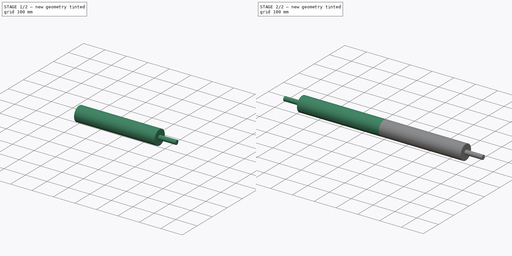
[diagram: build sequence overview — one tinted view per stage of 2, left to right]
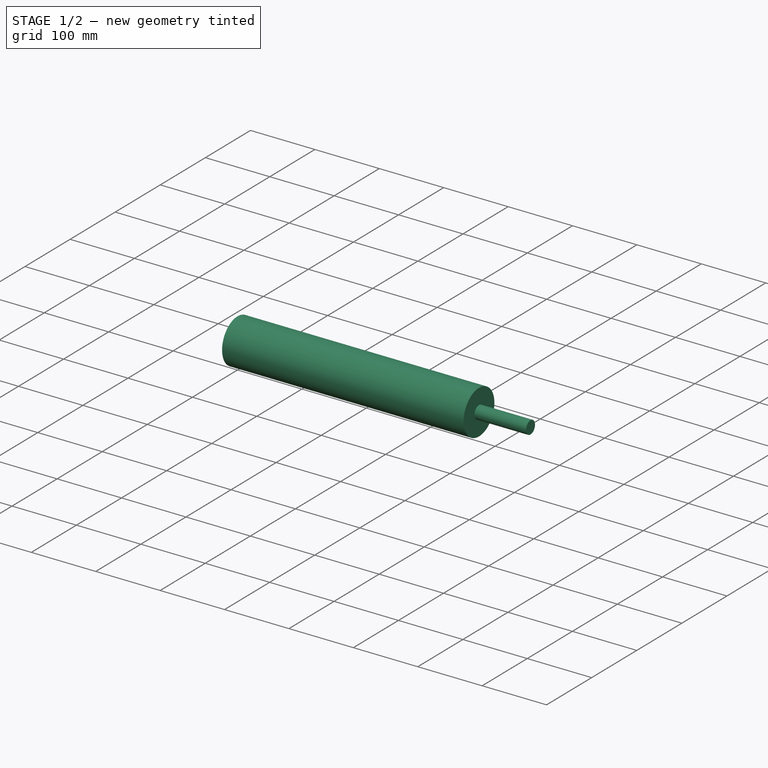
[diagram: stage 1 of 2 — iso view after this stage's code; geometry added in this stage tinted green]
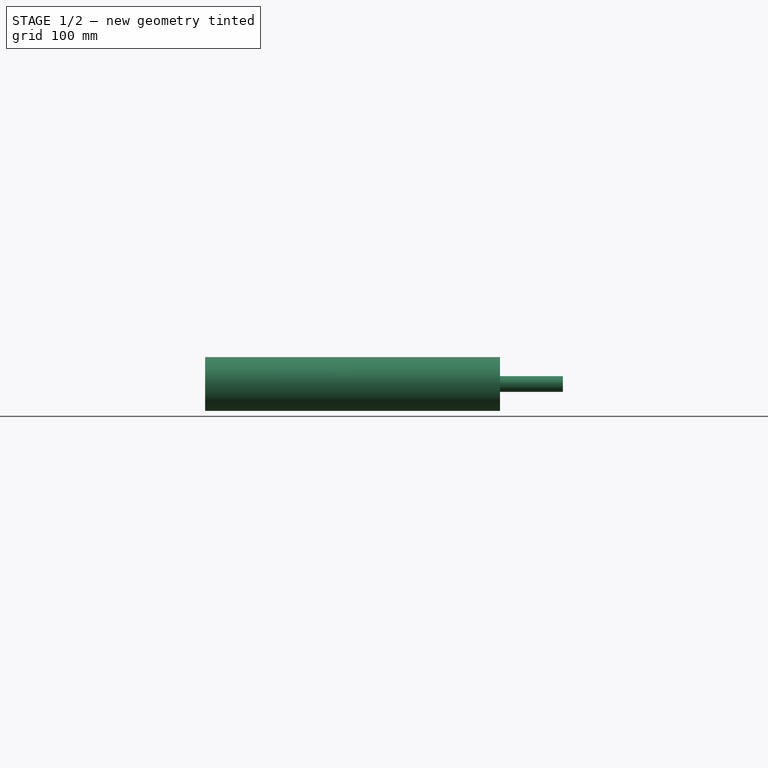
[diagram: stage 1 of 2 — front view after this stage's code; geometry added in this stage tinted green]
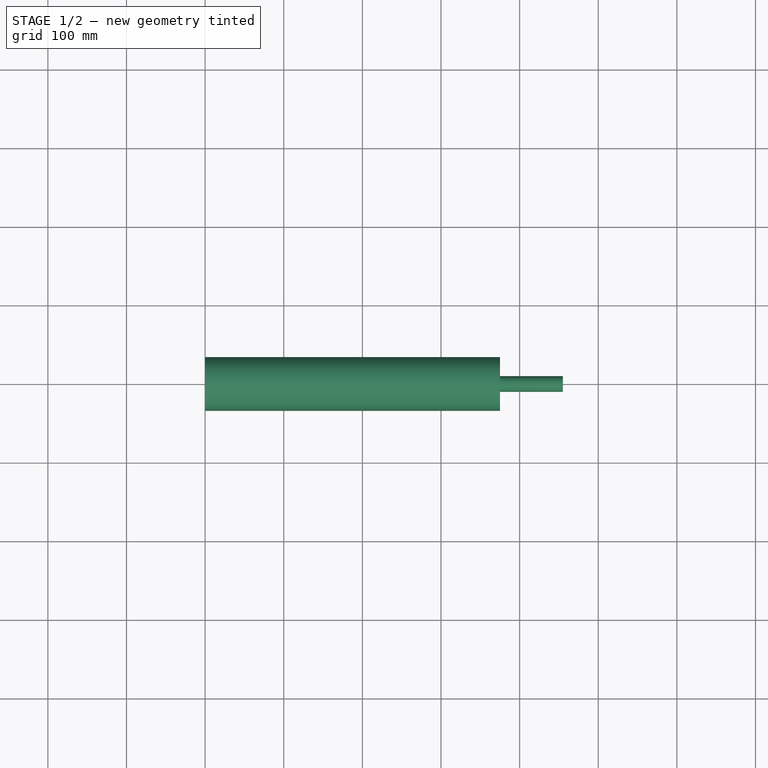
[diagram: stage 1 of 2 — top view after this stage's code; geometry added in this stage tinted green]
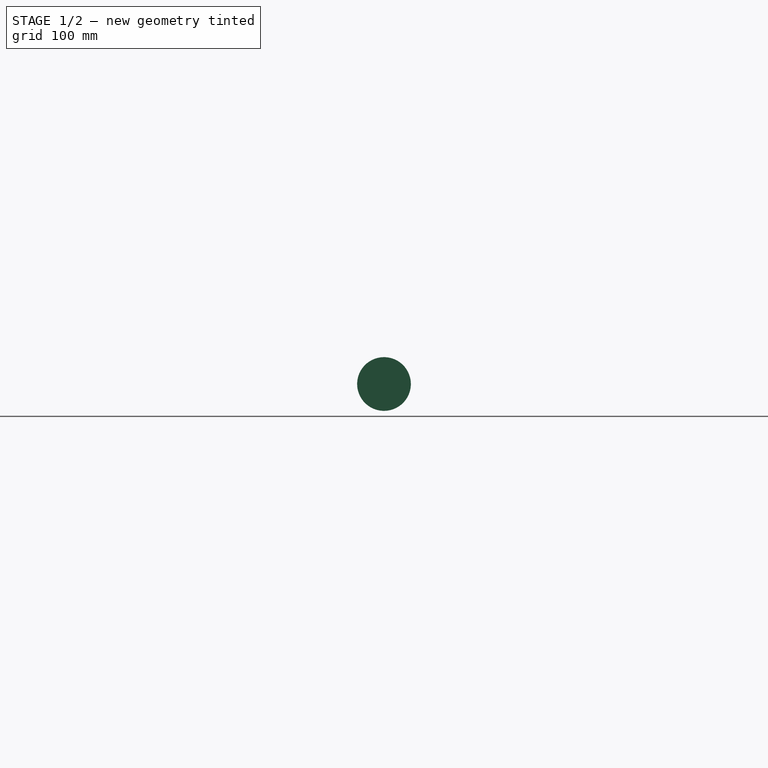
[diagram: stage 1 of 2 — right view after this stage's code; geometry added in this stage tinted green]
FCSTD DOCUMENT  (FreeCAD 0.21R32532 (Git))
Label: roll_75x710mm
License: All rights reserved
LicenseURL: http://en.wikipedia.org/wiki/All_rights_reserved
objects: PartDesign::CoordinateSystem×3, Sketcher::SketchObject×1, PartDesign::Revolution×1, PartDesign::Mirrored×1, PartDesign::Body×1
note: 8 computed .brp shape members not serialized (recipe doc carries the construction recipe); baked Part::Feature solids carry a one-line shape summary decoded from their .brp

FEATURE [PartDesign::CoordinateSystem] LCS_0
  AttacherType = Attacher::AttachEngine3D
  MapMode = 2
  Support = -> [X_Axis]
FEATURE [Sketcher::SketchObject] roll_75_sketch  label="roll_75x710_sketch"
  FullyConstrained = true
  MapMode = 5
  Placement = pos=(0,0,0) rot=(1,0,0;1.5708rad)
  Support = -> [XZ_Plane]
  sketch-geometry (8):
    g0: LineSegment StartX=0 StartY=34.15 StartZ=0 EndX=375 EndY=34.15 EndZ=0
    g1: LineSegment StartX=375 StartY=34.15 StartZ=0 EndX=375 EndY=10 EndZ=0
    g2: LineSegment StartX=375 StartY=10 StartZ=0 EndX=455 EndY=10 EndZ=0
    g3: LineSegment StartX=455 StartY=10 StartZ=0 EndX=455 EndY=0 EndZ=0
    g4: LineSegment StartX=455 StartY=0 StartZ=0 EndX=0 EndY=0 EndZ=0
    g5: LineSegment StartX=0 StartY=0 StartZ=0 EndX=0 EndY=34.15 EndZ=0
    g6: GeomPoint X=-375 Y=34.15 Z=0
    g7: GeomPoint X=-455 Y=0 Z=0
  constraints (20):
    c: PointOnObject(g0,g-2)
    c: Horizontal(g0)
    c: Coincident(g0,g1)
    c: Vertical(g1)
    c: Coincident(g1,g2)
    c: Horizontal(g2)
    c: Coincident(g2,g3)
    c: PointOnObject(g3,g-1)
    c: Vertical(g3)
    c: Coincident(g3,g4)
    c: Coincident(g4,g-1)
    c: Coincident(g4,g5)
    c: Coincident(g5,g0)
    c: Distance(g4) = 455
    c: Distance(g0) = 375
    c: DistanceY(g0) = 34.15  'r'
    c: DistanceY(g2) = 10
    c: Symmetric(g7,g3,g4)
    c: Symmetric(g6,g0,g0)
    c: DistanceX(g6,g0) = 750  'width'
FEATURE [PartDesign::Revolution] Revolution
  Angle = 360
  Axis = (1,0,0)
  Base = (0,0,0)
  Placement = pos=(0,0,0) rot=(1,0,0;1.5708rad)
  Profile = -> roll_75_sketch
  ReferenceAxis = -> roll_75_sketch [H_Axis]
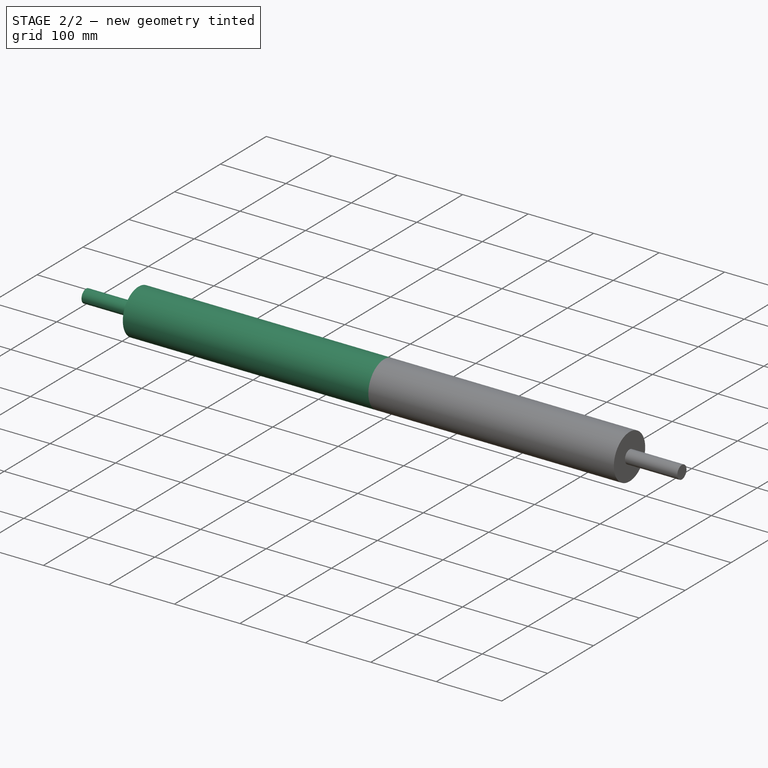
[diagram: stage 2 of 2 — iso view after this stage's code; geometry added in this stage tinted green]
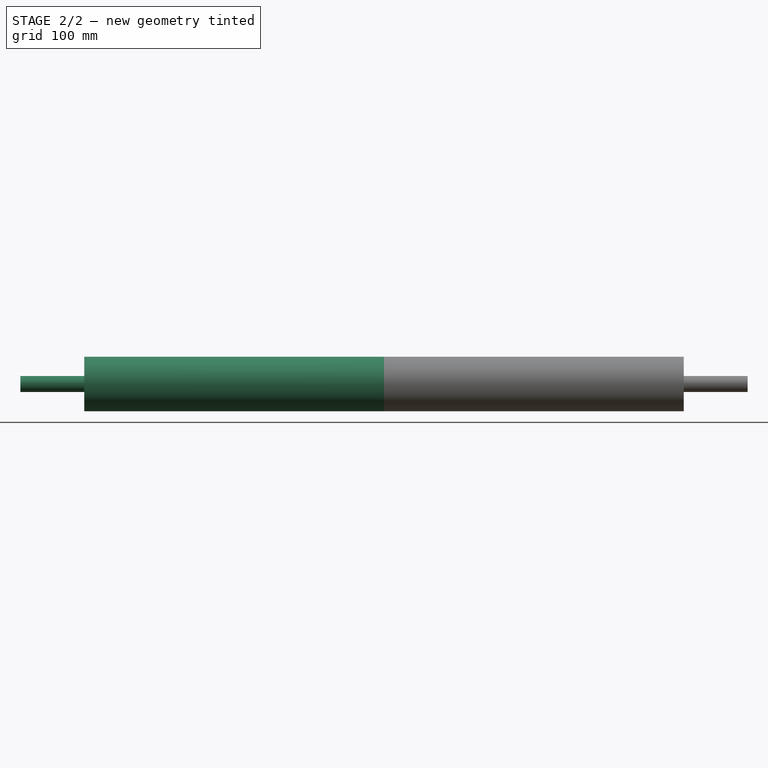
[diagram: stage 2 of 2 — front view after this stage's code; geometry added in this stage tinted green]
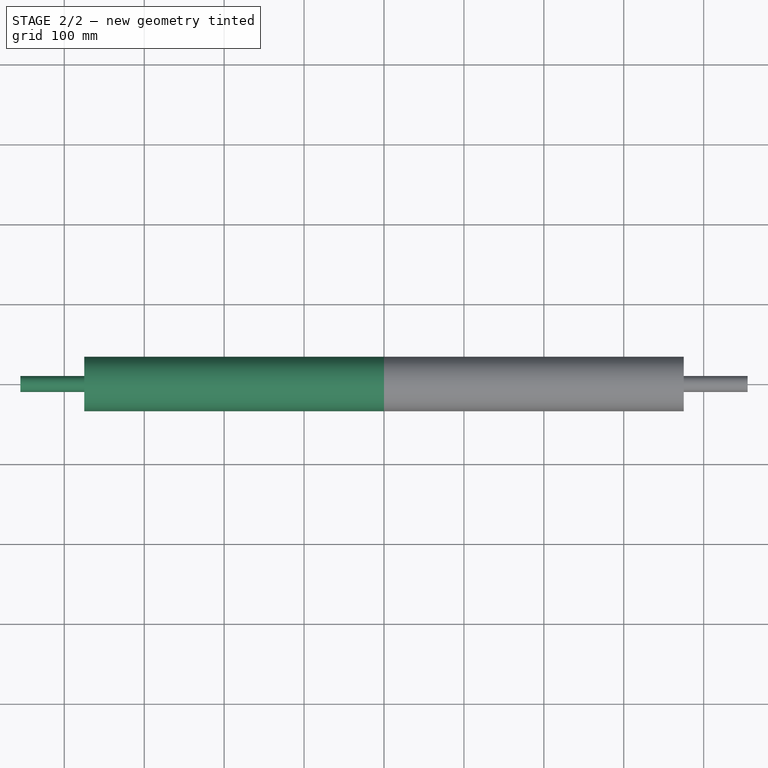
[diagram: stage 2 of 2 — top view after this stage's code; geometry added in this stage tinted green]
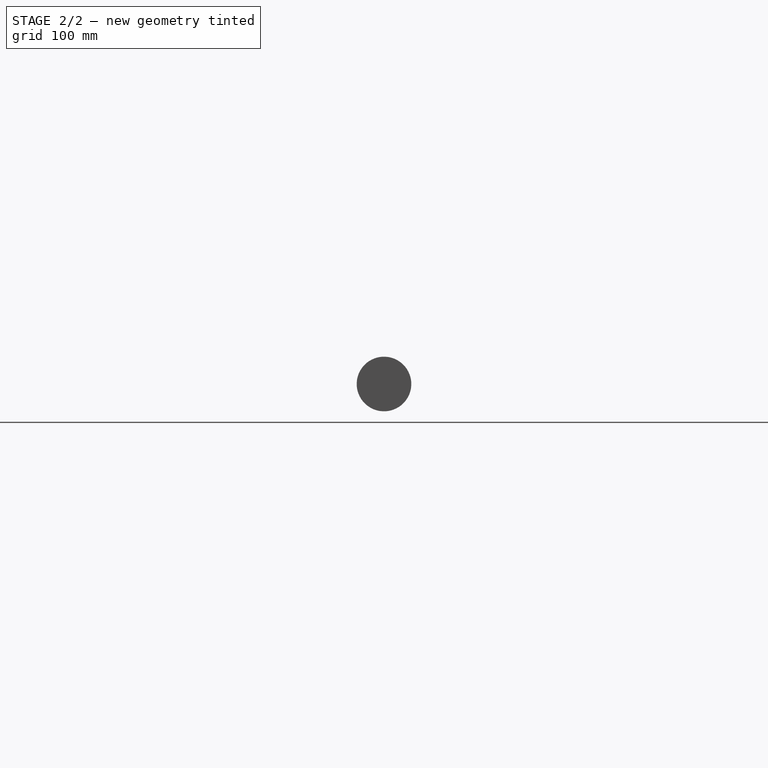
[diagram: stage 2 of 2 — right view after this stage's code; geometry added in this stage tinted green]
FEATURE [PartDesign::Mirrored] Mirrored
  BaseFeature = -> Revolution
  MirrorPlane = -> roll_75_sketch [V_Axis]
  Originals = -> [Revolution]
  Placement = pos=(0,0,0) rot=(1,0,0;1.5708rad)
FEATURE [PartDesign::CoordinateSystem] Local_CS  label="right"
  AttacherType = Attacher::AttachEngine3D
  AttachmentOffset = pos=(0,0,375) rot=(0,0,1;0rad)
  MapMode = 5
  Placement = pos=(375,-8.33e-14,8.33e-14) rot=(0.57735,0.57735,0.57735;2.0944rad)
  Support = -> [YZ_Plane]
  expr: .AttachmentOffset.Base.z = <<roll_75x710_sketch>>.Constraints.width / 2
FEATURE [PartDesign::CoordinateSystem] Local_CS001  label="left"
  AttacherType = Attacher::AttachEngine3D
  AttachmentOffset = pos=(0,0,375) rot=(0,0,1;0rad)
  MapMode = 5
  Placement = pos=(-375,8.33e-14,-8.33e-14) rot=(-0.57735,0.57735,0.57735;4.18879rad)
  Support = -> [YZ_Plane]
  expr: .AttachmentOffset.Base.z = <<roll_75x710_sketch>>.Constraints.width / 2
FEATURE [PartDesign::Body] roll_75  label="roll_75x710"
  Group = -> [LCS_0,roll_75_sketch,Revolution,Mirrored,Local_CS,Local_CS001]
  Origin = -> Origin
  Tip = -> Mirrored
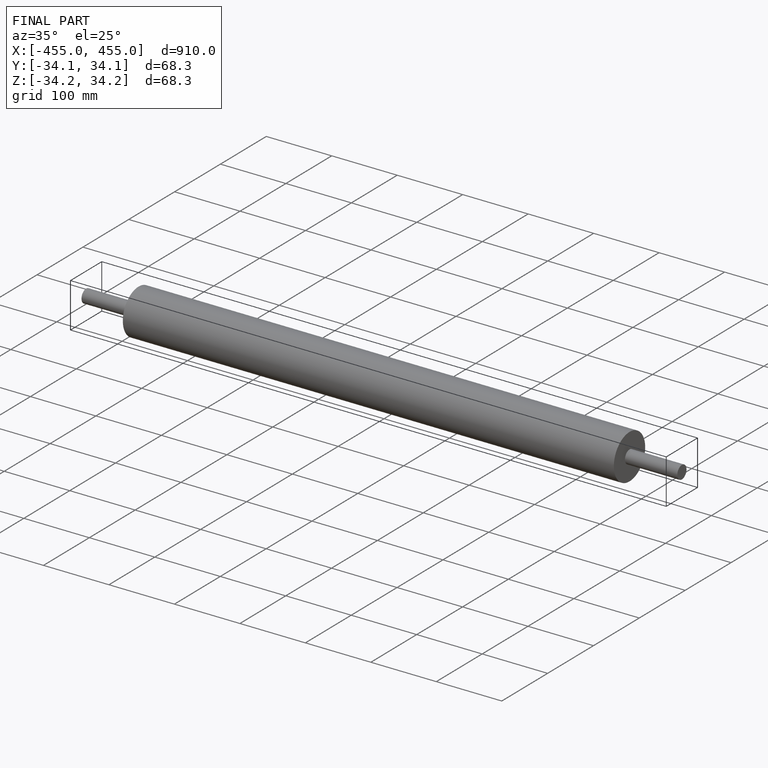
[diagram: finished part — iso view with bounding-box wireframe]
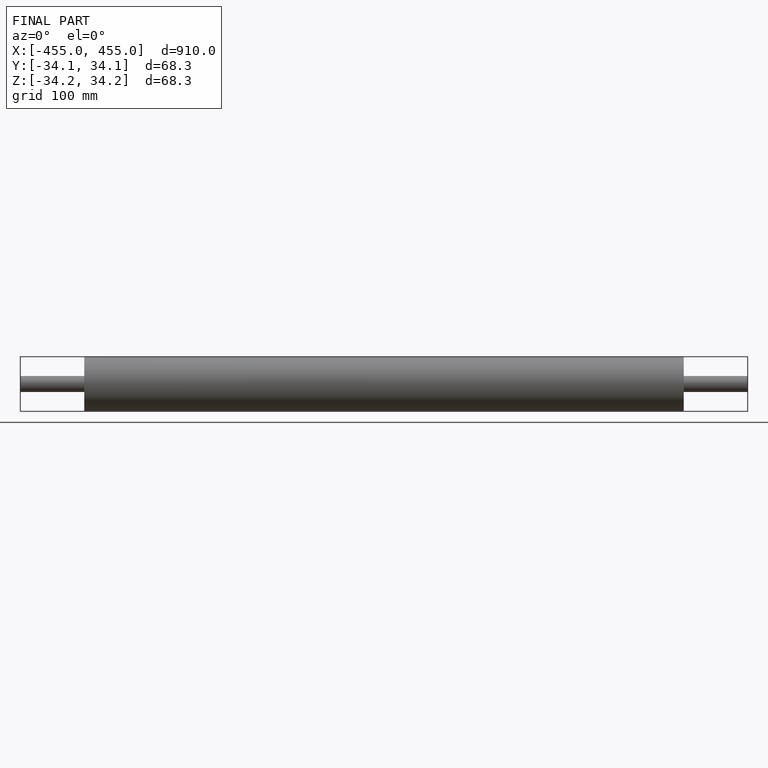
[diagram: finished part — front view with bounding-box wireframe]
